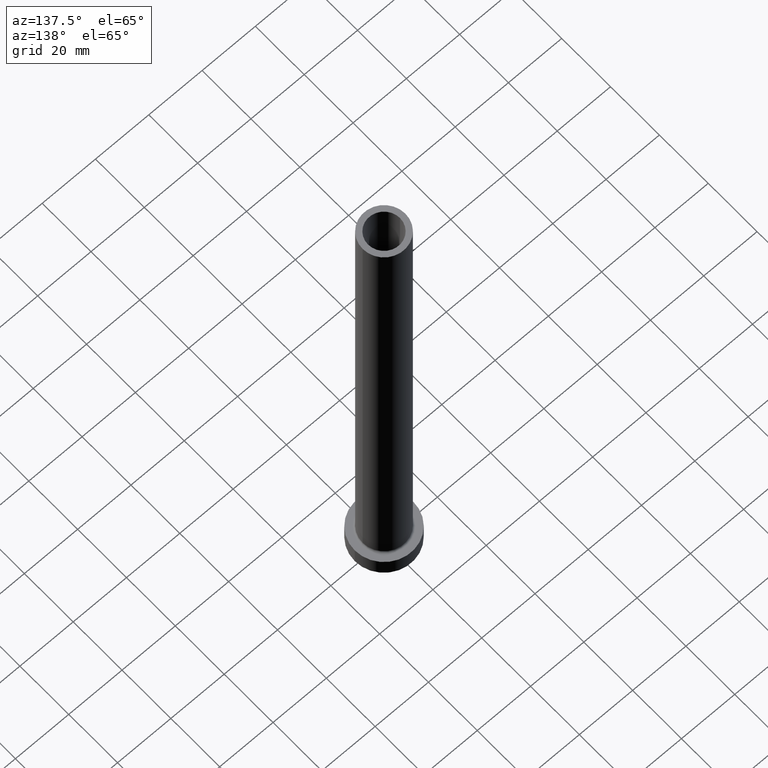
[diagram: clean part render]
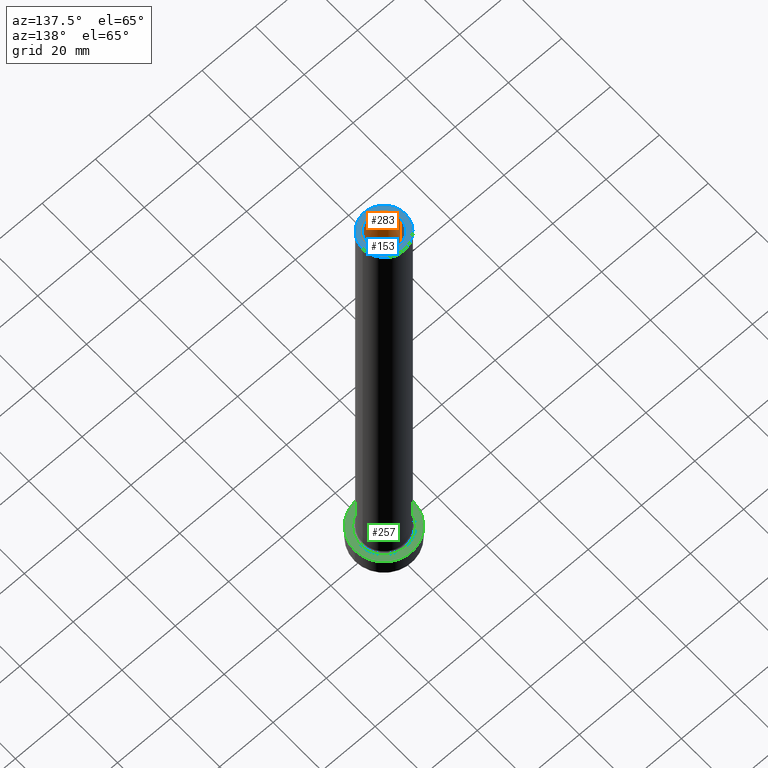
[diagram: same view with three faces highlighted in distinct colors, each labeled with its STEP entity id]
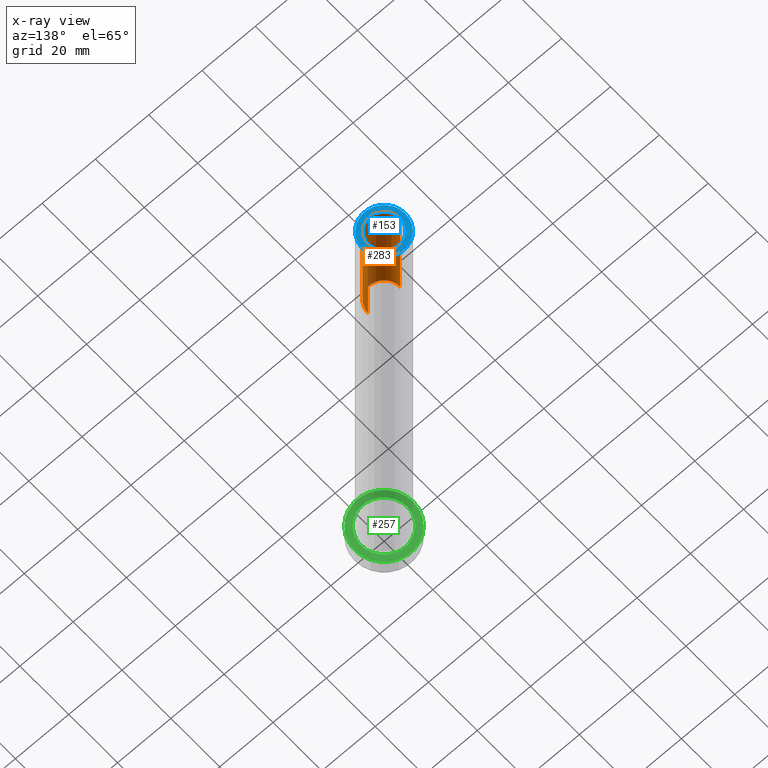
[diagram: x-ray of the same camera — body ghosted, the three highlighted faces saturated]
A machine part, auxiliary view with three faces highlighted in distinct colors.
The next image is the same camera in x-ray (body ghosted, the three faces saturated) — at least one of them is partly hidden behind the body in this view.
Their STEP definitions:

[orange] entity #283 — the highlighted cylindrical surface (edge-blend (fillet) strip) has radius 6 mm, axis along (0, 0, -1).
#5 = CARTESIAN_POINT ( 'NONE',  ( 6.000000000000000888, 7.347880794884119736E-16, 200.0000000000000000 ) ) ;
#9 = CARTESIAN_POINT ( 'NONE',  ( 6.000000000000000888, 7.347880794884119736E-16, 155.0000000000000284 ) ) ;
#30 = ORIENTED_EDGE ( 'NONE', *, *, #175, .F. ) ;
#38 = DIRECTION ( 'NONE',  ( 0.000000000000000000, 0.000000000000000000, -1.000000000000000000 ) ) ;
#48 = CARTESIAN_POINT ( 'NONE',  ( 0.000000000000000000, 0.000000000000000000, 200.0000000000000000 ) ) ;
#60 = VERTEX_POINT ( 'NONE', #346 ) ;
#119 = EDGE_CURVE ( 'NONE', #123, #60, #149, .T. ) ;
#123 = VERTEX_POINT ( 'NONE', #213 ) ;
#129 = EDGE_LOOP ( 'NONE', ( #286, #157, #30, #211 ) ) ;
#149 = LINE ( 'NONE', #322, #412 ) ;
#157 = ORIENTED_EDGE ( 'NONE', *, *, #203, .T. ) ;
#162 = AXIS2_PLACEMENT_3D ( 'NONE', #396, #222, #253 ) ;
#165 = FACE_OUTER_BOUND ( 'NONE', #129, .T. ) ;
#175 = EDGE_CURVE ( 'NONE', #60, #238, #302, .T. ) ;
#196 = DIRECTION ( 'NONE',  ( 0.000000000000000000, 0.000000000000000000, 1.000000000000000000 ) ) ;
#203 = EDGE_CURVE ( 'NONE', #443, #238, #360, .T. ) ;
#211 = ORIENTED_EDGE ( 'NONE', *, *, #119, .F. ) ;
#213 = CARTESIAN_POINT ( 'NONE',  ( -6.000000000000000888, 0.000000000000000000, 200.0000000000000000 ) ) ;
#222 = DIRECTION ( 'NONE',  ( 0.000000000000000000, 0.000000000000000000, 1.000000000000000000 ) ) ;
#238 = VERTEX_POINT ( 'NONE', #9 ) ;
#244 = CARTESIAN_POINT ( 'NONE',  ( 6.000000000000000888, 7.347880794884119736E-16, 200.0000000000000000 ) ) ;
#253 = DIRECTION ( 'NONE',  ( 1.000000000000000000, 0.000000000000000000, 0.000000000000000000 ) ) ;
#258 = VECTOR ( 'NONE', #38, 1000.000000000000000 ) ;
#265 = DIRECTION ( 'NONE',  ( -1.000000000000000000, 0.000000000000000000, 0.000000000000000000 ) ) ;
#268 = CYLINDRICAL_SURFACE ( 'NONE', #421, 6.000000000000000888 ) ;
#272 = EDGE_CURVE ( 'NONE', #123, #443, #294, .T. ) ;
#283 = ADVANCED_FACE ( 'NONE', ( #165 ), #268, .F. ) ;
#286 = ORIENTED_EDGE ( 'NONE', *, *, #272, .T. ) ;
#294 = CIRCLE ( 'NONE', #330, 6.000000000000000888 ) ;
#296 = DIRECTION ( 'NONE',  ( 1.000000000000000000, 0.000000000000000000, 0.000000000000000000 ) ) ;
#302 = CIRCLE ( 'NONE', #162, 6.000000000000000888 ) ;
#322 = CARTESIAN_POINT ( 'NONE',  ( -6.000000000000000888, 0.000000000000000000, 200.0000000000000000 ) ) ;
#330 = AXIS2_PLACEMENT_3D ( 'NONE', #48, #196, #296 ) ;
#332 = CARTESIAN_POINT ( 'NONE',  ( 0.000000000000000000, 0.000000000000000000, 200.0000000000000000 ) ) ;
#346 = CARTESIAN_POINT ( 'NONE',  ( -6.000000000000000888, 0.000000000000000000, 155.0000000000000284 ) ) ;
#360 = LINE ( 'NONE', #5, #258 ) ;
#394 = DIRECTION ( 'NONE',  ( 0.000000000000000000, 0.000000000000000000, -1.000000000000000000 ) ) ;
#396 = CARTESIAN_POINT ( 'NONE',  ( 0.000000000000000000, 0.000000000000000000, 155.0000000000000284 ) ) ;
#403 = DIRECTION ( 'NONE',  ( 0.000000000000000000, 0.000000000000000000, -1.000000000000000000 ) ) ;
#412 = VECTOR ( 'NONE', #394, 1000.000000000000000 ) ;
#421 = AXIS2_PLACEMENT_3D ( 'NONE', #332, #403, #265 ) ;
#443 = VERTEX_POINT ( 'NONE', #244 ) ;

[blue] entity #153 — the highlighted planar face has unit normal (0, 0, 1).
#18 = DIRECTION ( 'NONE',  ( 1.000000000000000000, 0.000000000000000000, 0.000000000000000000 ) ) ;
#32 = CARTESIAN_POINT ( 'NONE',  ( -8.000000000000000000, 0.000000000000000000, 200.0000000000000000 ) ) ;
#48 = CARTESIAN_POINT ( 'NONE',  ( 0.000000000000000000, 0.000000000000000000, 200.0000000000000000 ) ) ;
#63 = EDGE_CURVE ( 'NONE', #443, #123, #115, .T. ) ;
#65 = ORIENTED_EDGE ( 'NONE', *, *, #81, .T. ) ;
#80 = CARTESIAN_POINT ( 'NONE',  ( 0.000000000000000000, 0.000000000000000000, 200.0000000000000000 ) ) ;
#81 = EDGE_CURVE ( 'NONE', #446, #438, #339, .T. ) ;
#82 = EDGE_LOOP ( 'NONE', ( #197, #375 ) ) ;
#115 = CIRCLE ( 'NONE', #379, 6.000000000000000888 ) ;
#123 = VERTEX_POINT ( 'NONE', #213 ) ;
#136 = DIRECTION ( 'NONE',  ( 1.000000000000000000, 0.000000000000000000, 0.000000000000000000 ) ) ;
#142 = FACE_BOUND ( 'NONE', #82, .T. ) ;
#150 = DIRECTION ( 'NONE',  ( 0.000000000000000000, 0.000000000000000000, 1.000000000000000000 ) ) ;
#151 = AXIS2_PLACEMENT_3D ( 'NONE', #288, #150, #429 ) ;
#153 = ADVANCED_FACE ( 'NONE', ( #142, #295 ), #431, .T. ) ;
#196 = DIRECTION ( 'NONE',  ( 0.000000000000000000, 0.000000000000000000, 1.000000000000000000 ) ) ;
#197 = ORIENTED_EDGE ( 'NONE', *, *, #272, .F. ) ;
#206 = CARTESIAN_POINT ( 'NONE',  ( 8.000000000000000000, 9.797174393178825657E-16, 200.0000000000000000 ) ) ;
#213 = CARTESIAN_POINT ( 'NONE',  ( -6.000000000000000888, 0.000000000000000000, 200.0000000000000000 ) ) ;
#244 = CARTESIAN_POINT ( 'NONE',  ( 6.000000000000000888, 7.347880794884119736E-16, 200.0000000000000000 ) ) ;
#247 = CARTESIAN_POINT ( 'NONE',  ( 0.000000000000000000, 0.000000000000000000, 200.0000000000000000 ) ) ;
#272 = EDGE_CURVE ( 'NONE', #123, #443, #294, .T. ) ;
#273 = AXIS2_PLACEMENT_3D ( 'NONE', #392, #313, #453 ) ;
#277 = AXIS2_PLACEMENT_3D ( 'NONE', #80, #374, #18 ) ;
#288 = CARTESIAN_POINT ( 'NONE',  ( 0.000000000000000000, 0.000000000000000000, 200.0000000000000000 ) ) ;
#294 = CIRCLE ( 'NONE', #330, 6.000000000000000888 ) ;
#295 = FACE_OUTER_BOUND ( 'NONE', #419, .T. ) ;
#296 = DIRECTION ( 'NONE',  ( 1.000000000000000000, 0.000000000000000000, 0.000000000000000000 ) ) ;
#313 = DIRECTION ( 'NONE',  ( 0.000000000000000000, 0.000000000000000000, 1.000000000000000000 ) ) ;
#318 = ORIENTED_EDGE ( 'NONE', *, *, #356, .T. ) ;
#330 = AXIS2_PLACEMENT_3D ( 'NONE', #48, #196, #296 ) ;
#339 = CIRCLE ( 'NONE', #273, 8.000000000000000000 ) ;
#356 = EDGE_CURVE ( 'NONE', #438, #446, #420, .T. ) ;
#374 = DIRECTION ( 'NONE',  ( 0.000000000000000000, 0.000000000000000000, 1.000000000000000000 ) ) ;
#375 = ORIENTED_EDGE ( 'NONE', *, *, #63, .F. ) ;
#379 = AXIS2_PLACEMENT_3D ( 'NONE', #247, #389, #136 ) ;
#389 = DIRECTION ( 'NONE',  ( 0.000000000000000000, 0.000000000000000000, 1.000000000000000000 ) ) ;
#392 = CARTESIAN_POINT ( 'NONE',  ( 0.000000000000000000, 0.000000000000000000, 200.0000000000000000 ) ) ;
#419 = EDGE_LOOP ( 'NONE', ( #318, #65 ) ) ;
#420 = CIRCLE ( 'NONE', #277, 8.000000000000000000 ) ;
#429 = DIRECTION ( 'NONE',  ( 1.000000000000000000, 0.000000000000000000, -0.000000000000000000 ) ) ;
#431 = PLANE ( 'NONE',  #151 ) ;
#438 = VERTEX_POINT ( 'NONE', #32 ) ;
#443 = VERTEX_POINT ( 'NONE', #244 ) ;
#446 = VERTEX_POINT ( 'NONE', #206 ) ;
#453 = DIRECTION ( 'NONE',  ( 1.000000000000000000, 0.000000000000000000, 0.000000000000000000 ) ) ;

[green] entity #257 — the highlighted planar face has unit normal (0, 0, 1).
#12 = DIRECTION ( 'NONE',  ( 1.000000000000000000, 0.000000000000000000, 0.000000000000000000 ) ) ;
#19 = VERTEX_POINT ( 'NONE', #461 ) ;
#33 = ORIENTED_EDGE ( 'NONE', *, *, #321, .T. ) ;
#34 = AXIS2_PLACEMENT_3D ( 'NONE', #227, #270, #12 ) ;
#39 = CARTESIAN_POINT ( 'NONE',  ( 0.000000000000000000, 0.000000000000000000, 7.000000000000000000 ) ) ;
#42 = PLANE ( 'NONE',  #380 ) ;
#54 = CARTESIAN_POINT ( 'NONE',  ( -11.00000000000000000, 0.000000000000000000, 7.000000000000000000 ) ) ;
#55 = EDGE_CURVE ( 'NONE', #19, #405, #264, .T. ) ;
#57 = DIRECTION ( 'NONE',  ( 1.000000000000000000, 0.000000000000000000, 0.000000000000000000 ) ) ;
#73 = DIRECTION ( 'NONE',  ( 1.000000000000000000, 0.000000000000000000, -0.000000000000000000 ) ) ;
#113 = CARTESIAN_POINT ( 'NONE',  ( 0.000000000000000000, 0.000000000000000000, 7.000000000000000000 ) ) ;
#122 = CARTESIAN_POINT ( 'NONE',  ( 11.00000000000000000, 1.347111479062088405E-15, 7.000000000000000000 ) ) ;
#124 = CIRCLE ( 'NONE', #34, 8.699999999999999289 ) ;
#171 = DIRECTION ( 'NONE',  ( -0.000000000000000000, -0.000000000000000000, -1.000000000000000000 ) ) ;
#177 = CIRCLE ( 'NONE', #234, 11.00000000000000000 ) ;
#184 = DIRECTION ( 'NONE',  ( 0.000000000000000000, 0.000000000000000000, 1.000000000000000000 ) ) ;
#189 = DIRECTION ( 'NONE',  ( 1.000000000000000000, 0.000000000000000000, 0.000000000000000000 ) ) ;
#200 = EDGE_LOOP ( 'NONE', ( #410, #383 ) ) ;
#227 = CARTESIAN_POINT ( 'NONE',  ( 0.000000000000000000, 0.000000000000000000, 7.000000000000000000 ) ) ;
#232 = DIRECTION ( 'NONE',  ( 0.000000000000000000, 0.000000000000000000, 1.000000000000000000 ) ) ;
#234 = AXIS2_PLACEMENT_3D ( 'NONE', #39, #184, #326 ) ;
#255 = DIRECTION ( 'NONE',  ( 0.000000000000000000, 0.000000000000000000, 1.000000000000000000 ) ) ;
#257 = ADVANCED_FACE ( 'NONE', ( #289, #260 ), #42, .T. ) ;
#260 = FACE_OUTER_BOUND ( 'NONE', #384, .T. ) ;
#261 = CARTESIAN_POINT ( 'NONE',  ( -8.699999999999999289, 1.065442715258197248E-15, 7.000000000000006217 ) ) ;
#264 = CIRCLE ( 'NONE', #354, 8.699999999999999289 ) ;
#266 = EDGE_CURVE ( 'NONE', #352, #345, #177, .T. ) ;
#270 = DIRECTION ( 'NONE',  ( -0.000000000000000000, -0.000000000000000000, -1.000000000000000000 ) ) ;
#289 = FACE_BOUND ( 'NONE', #200, .T. ) ;
#311 = AXIS2_PLACEMENT_3D ( 'NONE', #337, #232, #189 ) ;
#321 = EDGE_CURVE ( 'NONE', #345, #352, #342, .T. ) ;
#326 = DIRECTION ( 'NONE',  ( 1.000000000000000000, 0.000000000000000000, 0.000000000000000000 ) ) ;
#334 = EDGE_CURVE ( 'NONE', #405, #19, #124, .T. ) ;
#337 = CARTESIAN_POINT ( 'NONE',  ( 0.000000000000000000, 0.000000000000000000, 7.000000000000000000 ) ) ;
#342 = CIRCLE ( 'NONE', #311, 11.00000000000000000 ) ;
#345 = VERTEX_POINT ( 'NONE', #54 ) ;
#352 = VERTEX_POINT ( 'NONE', #122 ) ;
#354 = AXIS2_PLACEMENT_3D ( 'NONE', #416, #171, #57 ) ;
#380 = AXIS2_PLACEMENT_3D ( 'NONE', #113, #255, #73 ) ;
#383 = ORIENTED_EDGE ( 'NONE', *, *, #334, .T. ) ;
#384 = EDGE_LOOP ( 'NONE', ( #33, #441 ) ) ;
#405 = VERTEX_POINT ( 'NONE', #261 ) ;
#410 = ORIENTED_EDGE ( 'NONE', *, *, #55, .T. ) ;
#416 = CARTESIAN_POINT ( 'NONE',  ( 0.000000000000000000, 0.000000000000000000, 7.000000000000000000 ) ) ;
#441 = ORIENTED_EDGE ( 'NONE', *, *, #266, .T. ) ;
#461 = CARTESIAN_POINT ( 'NONE',  ( 8.699999999999999289, 0.000000000000000000, 7.000000000000006217 ) ) ;